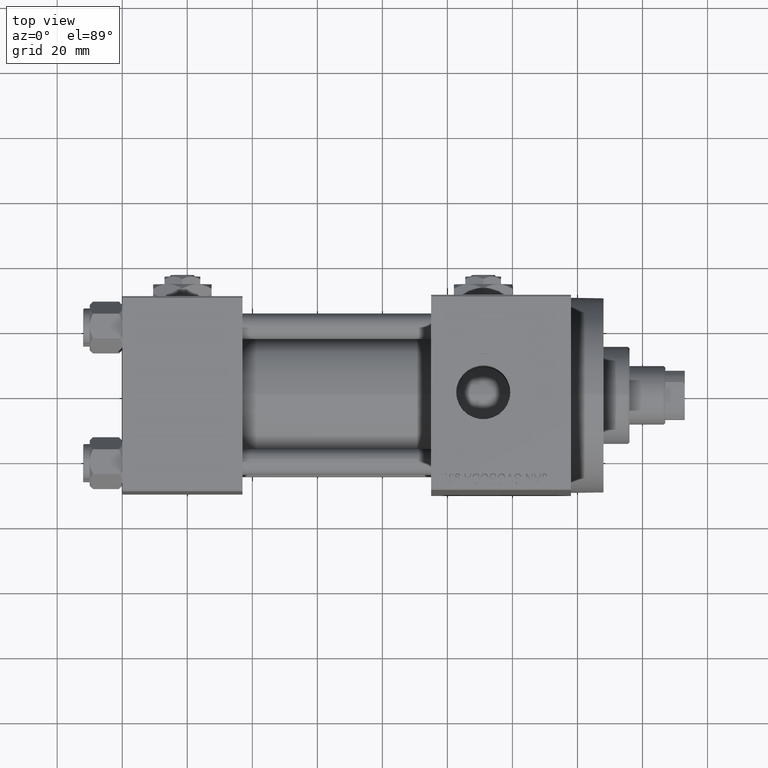
[diagram: clean part render]
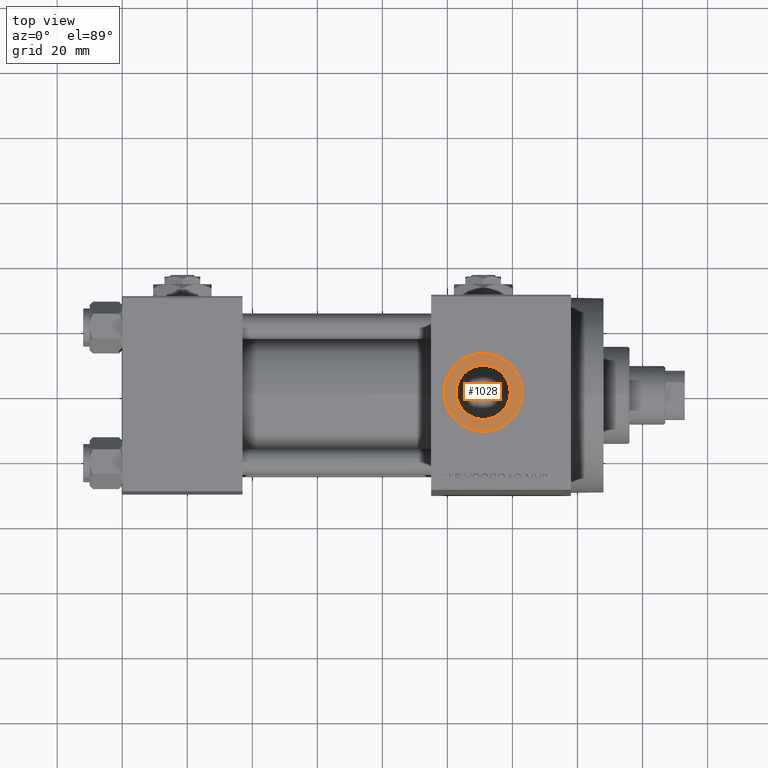
[diagram: same view with one face highlighted and labeled with its STEP entity id]
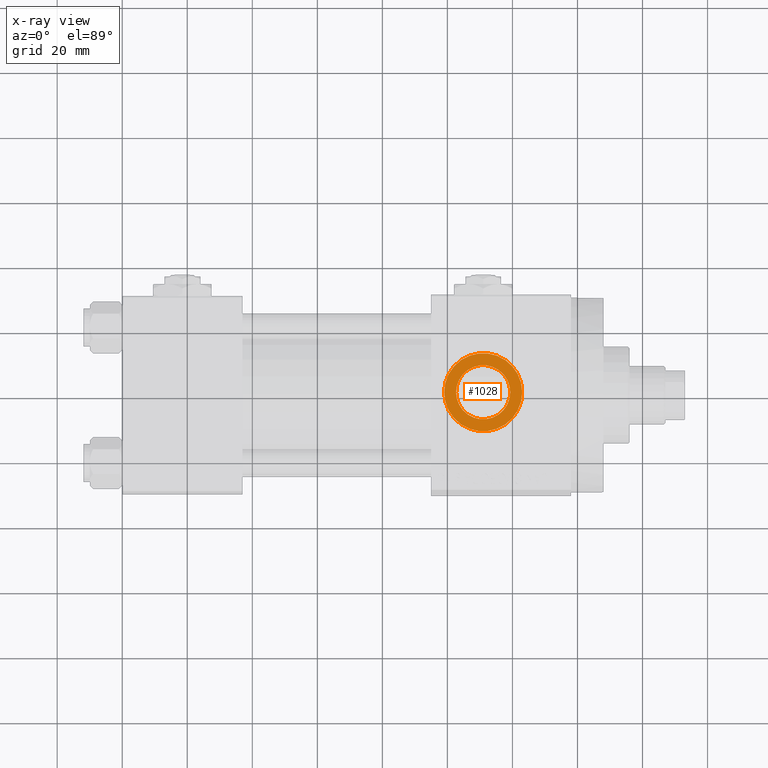
[diagram: x-ray of the same camera — body ghosted, the highlighted face saturated]
A machine part, top view. The second image highlights one B-rep face of the part: STEP entity #1028.
The next image is the same camera in x-ray: the body ghosted, the highlighted face saturated — about 0% of this face is hidden behind the body in this view.
In plain terms, the highlighted planar face has unit normal (0, 0, 1).
Its self-contained STEP definition (entity closure, byte-faithful):
#337 = CARTESIAN_POINT ( 'NONE',  ( 111.0000000000000000, 6.302828629382399373E-15, 54.29999999999999716 ) ) ;
#868 = CIRCLE ( 'NONE', #33515, 8.330000000000003624 ) ;
#1028 = ADVANCED_FACE ( 'NONE', ( #19040, #38492 ), #19529, .T. ) ;
#2679 = CARTESIAN_POINT ( 'NONE',  ( 111.0000000000000000, 6.302828629382399373E-15, 54.29999999999999716 ) ) ;
#3229 = EDGE_CURVE ( 'NONE', #40605, #11197, #21931, .T. ) ;
#5198 = AXIS2_PLACEMENT_3D ( 'NONE', #48387, #21485, #6026 ) ;
#6026 = DIRECTION ( 'NONE',  ( 1.000000000000000000, 0.000000000000000000, 0.000000000000000000 ) ) ;
#6977 = CARTESIAN_POINT ( 'NONE',  ( 99.00000000000000000, 7.772404788359221939E-15, 54.29999999999999716 ) ) ;
#8362 = ORIENTED_EDGE ( 'NONE', *, *, #3229, .T. ) ;
#11197 = VERTEX_POINT ( 'NONE', #47717 ) ;
#12091 = EDGE_CURVE ( 'NONE', #24843, #26548, #21292, .T. ) ;
#12092 = CARTESIAN_POINT ( 'NONE',  ( 111.0000000000000000, 6.302828629382400162E-15, 54.29999999999999716 ) ) ;
#12928 = CIRCLE ( 'NONE', #19296, 11.99999999999999645 ) ;
#13394 = ORIENTED_EDGE ( 'NONE', *, *, #31040, .T. ) ;
#15544 = DIRECTION ( 'NONE',  ( 0.000000000000000000, 0.000000000000000000, 1.000000000000000000 ) ) ;
#16403 = DIRECTION ( 'NONE',  ( 0.000000000000000000, 0.000000000000000000, 1.000000000000000000 ) ) ;
#16899 = CARTESIAN_POINT ( 'NONE',  ( 111.0000000000000000, 6.302828629382399373E-15, 54.29999999999999716 ) ) ;
#19040 = FACE_BOUND ( 'NONE', #19568, .T. ) ;
#19092 = DIRECTION ( 'NONE',  ( -0.000000000000000000, -0.000000000000000000, -1.000000000000000000 ) ) ;
#19296 = AXIS2_PLACEMENT_3D ( 'NONE', #2679, #37798, #37318 ) ;
#19529 = PLANE ( 'NONE',  #34554 ) ;
#19568 = EDGE_LOOP ( 'NONE', ( #42780, #8362 ) ) ;
#19847 = EDGE_LOOP ( 'NONE', ( #13394, #38067 ) ) ;
#20239 = EDGE_CURVE ( 'NONE', #11197, #40605, #868, .T. ) ;
#21292 = CIRCLE ( 'NONE', #37225, 11.99999999999999645 ) ;
#21485 = DIRECTION ( 'NONE',  ( -0.000000000000000000, -0.000000000000000000, -1.000000000000000000 ) ) ;
#21931 = CIRCLE ( 'NONE', #5198, 8.330000000000003624 ) ;
#23085 = DIRECTION ( 'NONE',  ( 1.000000000000000000, 0.000000000000000000, 0.000000000000000000 ) ) ;
#24843 = VERTEX_POINT ( 'NONE', #6977 ) ;
#26548 = VERTEX_POINT ( 'NONE', #46946 ) ;
#31040 = EDGE_CURVE ( 'NONE', #26548, #24843, #12928, .T. ) ;
#31638 = DIRECTION ( 'NONE',  ( 1.000000000000000000, 0.000000000000000000, 0.000000000000000000 ) ) ;
#33515 = AXIS2_PLACEMENT_3D ( 'NONE', #12092, #19092, #23085 ) ;
#34554 = AXIS2_PLACEMENT_3D ( 'NONE', #337, #15544, #45978 ) ;
#37225 = AXIS2_PLACEMENT_3D ( 'NONE', #16899, #16403, #31638 ) ;
#37318 = DIRECTION ( 'NONE',  ( 1.000000000000000000, 0.000000000000000000, 0.000000000000000000 ) ) ;
#37798 = DIRECTION ( 'NONE',  ( 0.000000000000000000, 0.000000000000000000, 1.000000000000000000 ) ) ;
#38067 = ORIENTED_EDGE ( 'NONE', *, *, #12091, .T. ) ;
#38335 = CARTESIAN_POINT ( 'NONE',  ( 119.3300000000000125, 7.322959413072145713E-15, 54.29999999999999716 ) ) ;
#38492 = FACE_OUTER_BOUND ( 'NONE', #19847, .T. ) ;
#40605 = VERTEX_POINT ( 'NONE', #38335 ) ;
#42780 = ORIENTED_EDGE ( 'NONE', *, *, #20239, .T. ) ;
#45978 = DIRECTION ( 'NONE',  ( 1.000000000000000000, 0.000000000000000000, -0.000000000000000000 ) ) ;
#46946 = CARTESIAN_POINT ( 'NONE',  ( 123.0000000000000000, 6.302828629382399373E-15, 54.29999999999999716 ) ) ;
#47717 = CARTESIAN_POINT ( 'NONE',  ( 102.6700000000000017, 6.302828629382400162E-15, 54.29999999999999716 ) ) ;
#48387 = CARTESIAN_POINT ( 'NONE',  ( 111.0000000000000000, 6.302828629382400162E-15, 54.29999999999999716 ) ) ;